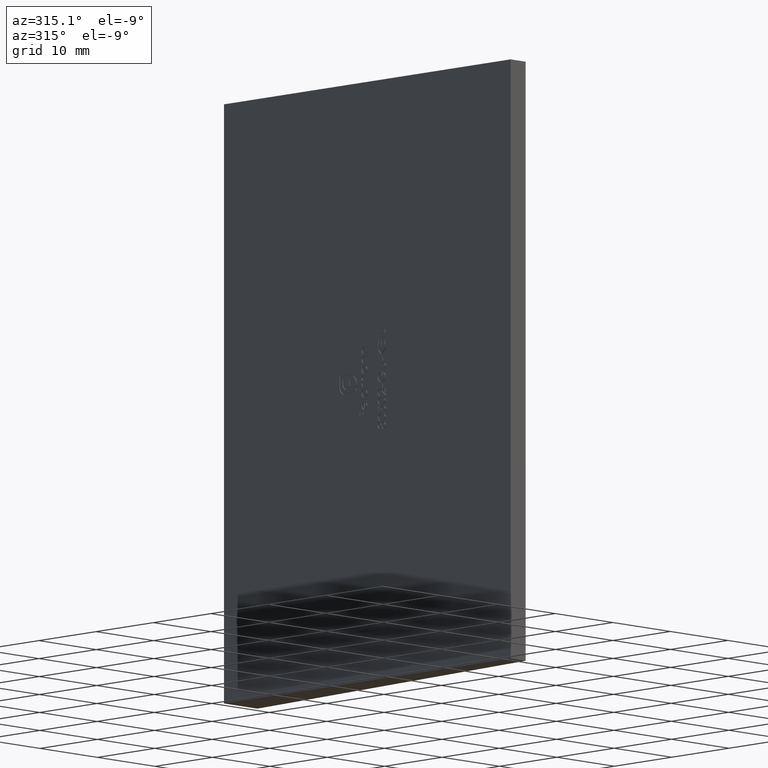
[diagram: clean part render]
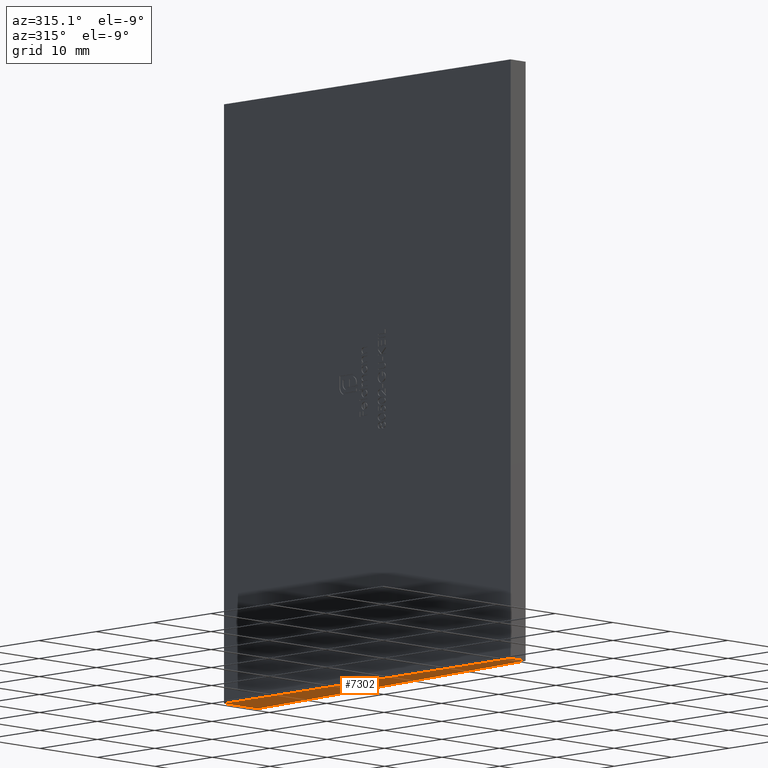
[diagram: same view with one face highlighted and labeled with its STEP entity id]
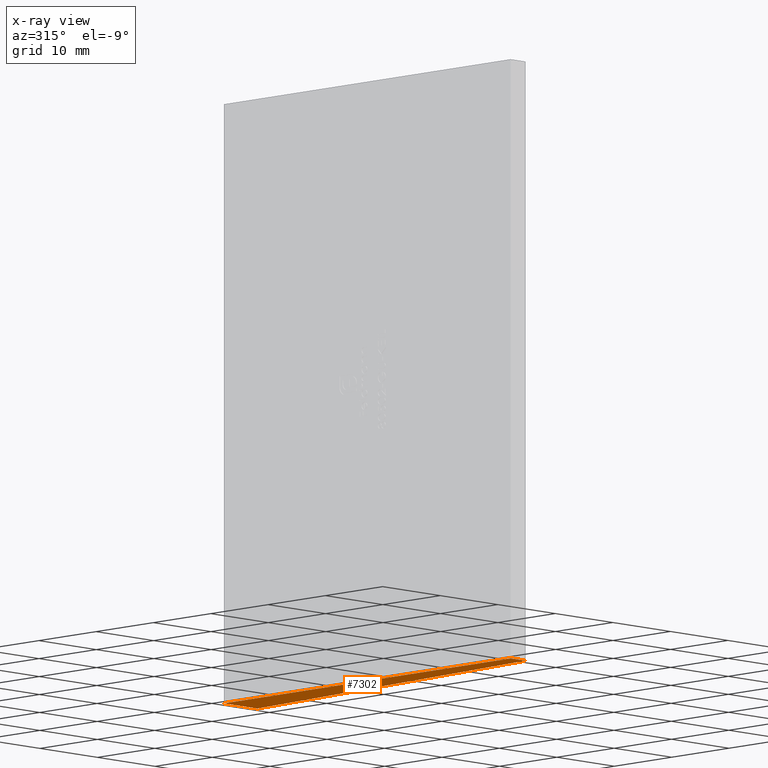
[diagram: x-ray of the same camera — body ghosted, the highlighted face saturated]
A machine part, auxiliary view. The second image highlights one B-rep face of the part: STEP entity #7302.
The next image is the same camera in x-ray: the body ghosted, the highlighted face saturated — about 0% of this face is hidden behind the body in this view.
In plain terms, the highlighted planar face has unit normal (0, 0, -1).
Its self-contained STEP definition (entity closure, byte-faithful):
#776 = LINE ( 'NONE', #3067, #11459 ) ;
#840 = VECTOR ( 'NONE', #11275, 1000.000000000000000 ) ;
#849 = EDGE_CURVE ( 'NONE', #11940, #6142, #6100, .T. ) ;
#1011 = EDGE_CURVE ( 'NONE', #6142, #4632, #4490, .T. ) ;
#1143 = VECTOR ( 'NONE', #1393, 1000.000000000000114 ) ;
#1184 = CARTESIAN_POINT ( 'NONE',  ( 2.899999999999997691, 25.00000000000000000, -37.35000000000000142 ) ) ;
#1393 = DIRECTION ( 'NONE',  ( 0.06386932928370199491, 0.9979582700578466525, -0.000000000000000000 ) ) ;
#1865 = ORIENTED_EDGE ( 'NONE', *, *, #9063, .F. ) ;
#2679 = DIRECTION ( 'NONE',  ( 0.000000000000000000, 0.000000000000000000, -1.000000000000000000 ) ) ;
#3067 = CARTESIAN_POINT ( 'NONE',  ( -2.899999999999992806, -25.00000000000000000, -37.35000000000000142 ) ) ;
#3947 = DIRECTION ( 'NONE',  ( -1.000000000000000000, 0.000000000000000000, -0.000000000000000000 ) ) ;
#4490 = LINE ( 'NONE', #1184, #1143 ) ;
#4632 = VERTEX_POINT ( 'NONE', #11467 ) ;
#4919 = CARTESIAN_POINT ( 'NONE',  ( -2.900000000000002132, 25.00000000000000000, -37.35000000000000142 ) ) ;
#5179 = CARTESIAN_POINT ( 'NONE',  ( 0.000000000000000000, 0.000000000000000000, -37.35000000000000142 ) ) ;
#6100 = LINE ( 'NONE', #12361, #15814 ) ;
#6142 = VERTEX_POINT ( 'NONE', #9860 ) ;
#7302 = ADVANCED_FACE ( 'NONE', ( #15935 ), #12792, .T. ) ;
#7521 = AXIS2_PLACEMENT_3D ( 'NONE', #5179, #2679, #3947 ) ;
#7711 = ORIENTED_EDGE ( 'NONE', *, *, #1011, .F. ) ;
#8163 = CARTESIAN_POINT ( 'NONE',  ( -2.899999999999992806, -25.00000000000000000, -37.35000000000000142 ) ) ;
#9020 = CARTESIAN_POINT ( 'NONE',  ( -2.900000000000002132, 25.00000000000000000, -37.35000000000000142 ) ) ;
#9063 = EDGE_CURVE ( 'NONE', #4632, #14203, #14126, .T. ) ;
#9860 = CARTESIAN_POINT ( 'NONE',  ( -0.2999999999999929945, -25.00000000000000000, -37.35000000000000142 ) ) ;
#11112 = DIRECTION ( 'NONE',  ( 1.000000000000000000, -0.000000000000000000, -0.000000000000000000 ) ) ;
#11275 = DIRECTION ( 'NONE',  ( -1.000000000000000000, -0.000000000000000000, -0.000000000000000000 ) ) ;
#11459 = VECTOR ( 'NONE', #11943, 1000.000000000000000 ) ;
#11467 = CARTESIAN_POINT ( 'NONE',  ( 2.899999999999997691, 25.00000000000000000, -37.35000000000000142 ) ) ;
#11940 = VERTEX_POINT ( 'NONE', #8163 ) ;
#11943 = DIRECTION ( 'NONE',  ( 1.821459649775647449E-16, -1.000000000000000000, -0.000000000000000000 ) ) ;
#12002 = ORIENTED_EDGE ( 'NONE', *, *, #12390, .F. ) ;
#12361 = CARTESIAN_POINT ( 'NONE',  ( -0.2999999999999929945, -25.00000000000000000, -37.35000000000000142 ) ) ;
#12390 = EDGE_CURVE ( 'NONE', #14203, #11940, #776, .T. ) ;
#12792 = PLANE ( 'NONE',  #7521 ) ;
#14126 = LINE ( 'NONE', #4919, #840 ) ;
#14203 = VERTEX_POINT ( 'NONE', #9020 ) ;
#14741 = EDGE_LOOP ( 'NONE', ( #14959, #12002, #1865, #7711 ) ) ;
#14959 = ORIENTED_EDGE ( 'NONE', *, *, #849, .F. ) ;
#15814 = VECTOR ( 'NONE', #11112, 1000.000000000000000 ) ;
#15935 = FACE_OUTER_BOUND ( 'NONE', #14741, .T. ) ;